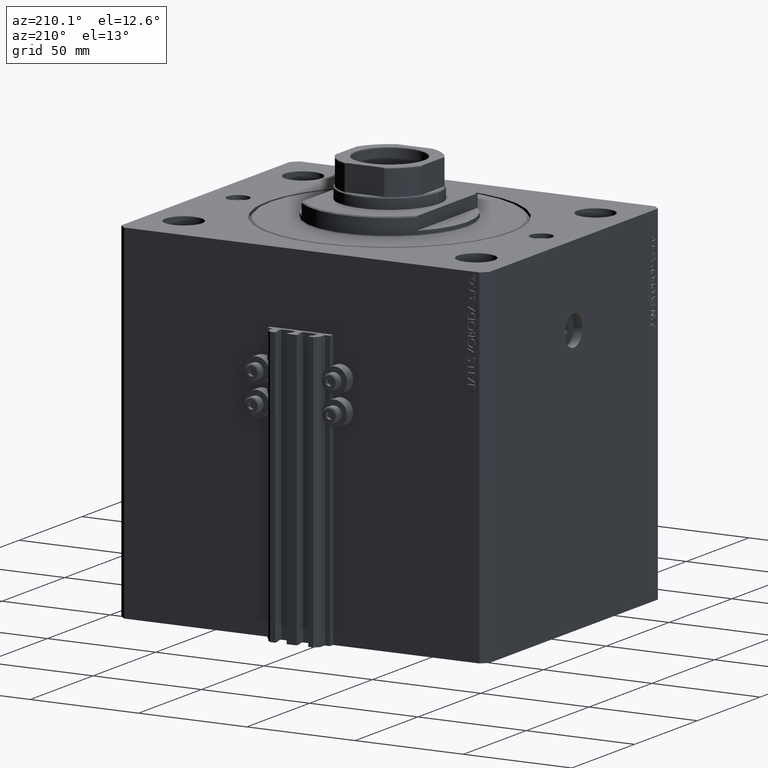
[diagram: clean part render]
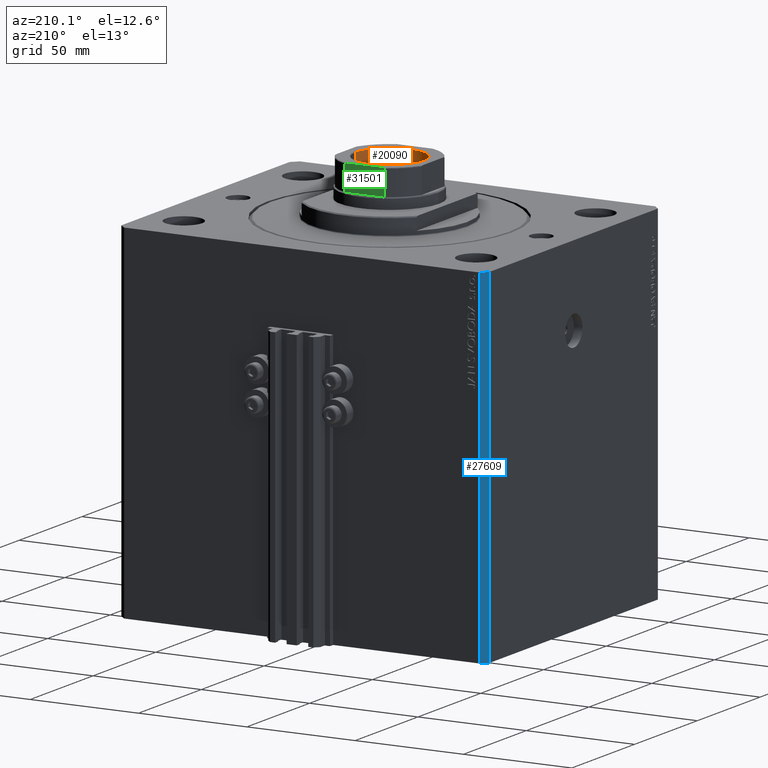
[diagram: same view with three faces highlighted in distinct colors, each labeled with its STEP entity id]
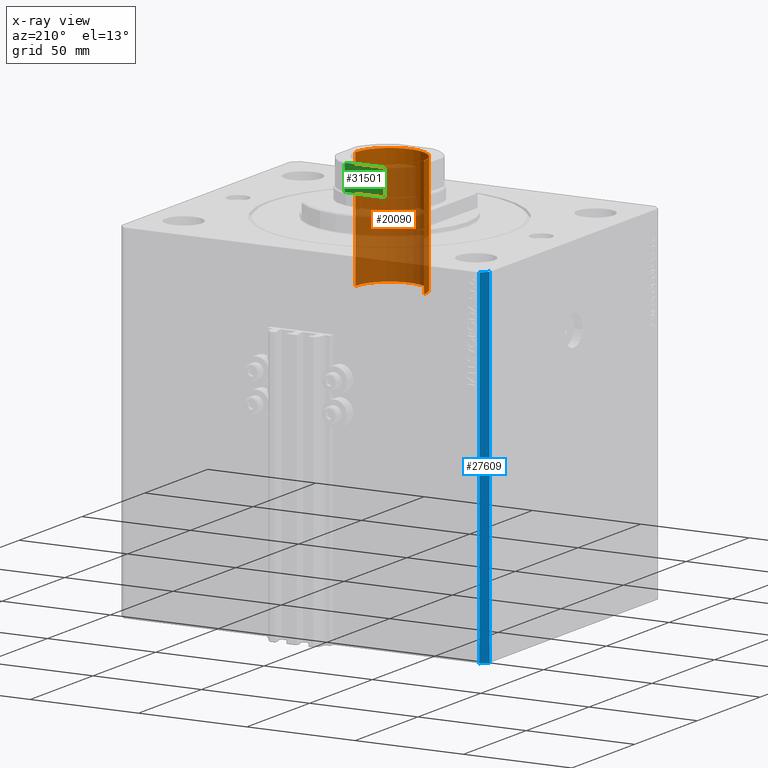
[diagram: x-ray of the same camera — body ghosted, the three highlighted faces saturated]
A machine part, auxiliary view with three faces highlighted in distinct colors.
The next image is the same camera in x-ray (body ghosted, the three faces saturated) — at least one of them is partly hidden behind the body in this view.
Their STEP definitions:

[orange] entity #20090 — the highlighted cylindrical surface (partial cylindrical patch) has radius 15.75 mm, axis along (0, 0, 1).
#5051 = CARTESIAN_POINT ( 'NONE',  ( 0.000000000000000000, 0.000000000000000000, 155.7999999999999545 ) ) ;
#5316 = DIRECTION ( 'NONE',  ( 1.000000000000000000, 0.000000000000000000, 0.000000000000000000 ) ) ;
#7582 = CIRCLE ( 'NONE', #46484, 15.74999999999999289 ) ;
#8878 = ORIENTED_EDGE ( 'NONE', *, *, #28510, .T. ) ;
#13344 = VERTEX_POINT ( 'NONE', #46841 ) ;
#13988 = CARTESIAN_POINT ( 'NONE',  ( 15.74999999999999289, 0.000000000000000000, 156.1000000000000227 ) ) ;
#14276 = DIRECTION ( 'NONE',  ( 1.000000000000000000, 0.000000000000000000, 0.000000000000000000 ) ) ;
#15334 = VERTEX_POINT ( 'NONE', #39180 ) ;
#16512 = CARTESIAN_POINT ( 'NONE',  ( 15.74999999999998934, 0.000000000000000000, 101.1000000000000227 ) ) ;
#17419 = LINE ( 'NONE', #27927, #40235 ) ;
#17881 = CARTESIAN_POINT ( 'NONE',  ( 0.000000000000000000, 0.000000000000000000, 156.1000000000000227 ) ) ;
#18334 = AXIS2_PLACEMENT_3D ( 'NONE', #17881, #46991, #14276 ) ;
#19199 = DIRECTION ( 'NONE',  ( -0.000000000000000000, -0.000000000000000000, 1.000000000000000000 ) ) ;
#20090 = ADVANCED_FACE ( 'NONE', ( #32653 ), #32425, .F. ) ;
#20961 = VERTEX_POINT ( 'NONE', #28355 ) ;
#22294 = ORIENTED_EDGE ( 'NONE', *, *, #24381, .T. ) ;
#24381 = EDGE_CURVE ( 'NONE', #20961, #15334, #17419, .T. ) ;
#25588 = ORIENTED_EDGE ( 'NONE', *, *, #32706, .F. ) ;
#25854 = LINE ( 'NONE', #13988, #38840 ) ;
#26855 = VERTEX_POINT ( 'NONE', #16512 ) ;
#27927 = CARTESIAN_POINT ( 'NONE',  ( -15.74999999999999289, 1.928818708657080556E-15, 156.1000000000000227 ) ) ;
#28355 = CARTESIAN_POINT ( 'NONE',  ( -15.74999999999998934, 1.928818708657080161E-15, 101.1000000000000227 ) ) ;
#28378 = EDGE_CURVE ( 'NONE', #26855, #13344, #25854, .T. ) ;
#28510 = EDGE_CURVE ( 'NONE', #15334, #13344, #7582, .T. ) ;
#29908 = DIRECTION ( 'NONE',  ( -0.000000000000000000, -0.000000000000000000, 1.000000000000000000 ) ) ;
#32425 = CYLINDRICAL_SURFACE ( 'NONE', #18334, 15.74999999999999289 ) ;
#32653 = FACE_OUTER_BOUND ( 'NONE', #37949, .T. ) ;
#32706 = EDGE_CURVE ( 'NONE', #20961, #26855, #47227, .T. ) ;
#35325 = DIRECTION ( 'NONE',  ( -0.000000000000000000, -0.000000000000000000, 1.000000000000000000 ) ) ;
#37536 = DIRECTION ( 'NONE',  ( 1.000000000000000000, 0.000000000000000000, 0.000000000000000000 ) ) ;
#37558 = CARTESIAN_POINT ( 'NONE',  ( 0.000000000000000000, 0.000000000000000000, 101.1000000000000227 ) ) ;
#37949 = EDGE_LOOP ( 'NONE', ( #25588, #22294, #8878, #38570 ) ) ;
#38570 = ORIENTED_EDGE ( 'NONE', *, *, #28378, .F. ) ;
#38840 = VECTOR ( 'NONE', #29908, 1000.000000000000000 ) ;
#39180 = CARTESIAN_POINT ( 'NONE',  ( -15.74999999999999289, 1.928818708657080556E-15, 155.7999999999999545 ) ) ;
#40235 = VECTOR ( 'NONE', #35325, 1000.000000000000000 ) ;
#41814 = DIRECTION ( 'NONE',  ( 0.000000000000000000, 0.000000000000000000, 1.000000000000000000 ) ) ;
#41912 = AXIS2_PLACEMENT_3D ( 'NONE', #37558, #19199, #5316 ) ;
#46484 = AXIS2_PLACEMENT_3D ( 'NONE', #5051, #41814, #37536 ) ;
#46841 = CARTESIAN_POINT ( 'NONE',  ( 15.74999999999999289, 0.000000000000000000, 155.7999999999999545 ) ) ;
#46991 = DIRECTION ( 'NONE',  ( -0.000000000000000000, -0.000000000000000000, 1.000000000000000000 ) ) ;
#47227 = CIRCLE ( 'NONE', #41912, 15.74999999999998934 ) ;

[blue] entity #27609 — the highlighted planar face has unit normal (-0.7071, 0.7071, 0).
#1629 = LINE ( 'NONE', #38154, #32535 ) ;
#2009 = CARTESIAN_POINT ( 'NONE',  ( -82.00000000000000000, 70.00000000000000000, 0.000000000000000000 ) ) ;
#2653 = CARTESIAN_POINT ( 'NONE',  ( -82.00000000000000000, 70.00000000000000000, -160.0000000000000000 ) ) ;
#3728 = VECTOR ( 'NONE', #23325, 1000.000000000000114 ) ;
#4323 = EDGE_LOOP ( 'NONE', ( #40188, #23662, #19754, #41371 ) ) ;
#6573 = VERTEX_POINT ( 'NONE', #12355 ) ;
#8339 = EDGE_CURVE ( 'NONE', #18667, #42827, #1629, .T. ) ;
#11662 = VERTEX_POINT ( 'NONE', #39511 ) ;
#12131 = DIRECTION ( 'NONE',  ( -0.7071067811865507924, -0.7071067811865441310, 0.000000000000000000 ) ) ;
#12355 = CARTESIAN_POINT ( 'NONE',  ( -85.00000000000001421, 67.00000000000001421, -160.0000000000000000 ) ) ;
#13620 = PLANE ( 'NONE',  #25134 ) ;
#14241 = CARTESIAN_POINT ( 'NONE',  ( -85.00000000000001421, 67.00000000000001421, -160.0000000000000000 ) ) ;
#17085 = EDGE_CURVE ( 'NONE', #11662, #6573, #25698, .T. ) ;
#18573 = VECTOR ( 'NONE', #28819, 1000.000000000000000 ) ;
#18667 = VERTEX_POINT ( 'NONE', #2009 ) ;
#19498 = CARTESIAN_POINT ( 'NONE',  ( -82.00000000000000000, 70.00000000000000000, -160.0000000000000000 ) ) ;
#19754 = ORIENTED_EDGE ( 'NONE', *, *, #17085, .T. ) ;
#22428 = CARTESIAN_POINT ( 'NONE',  ( -85.00000000000001421, 67.00000000000001421, 0.000000000000000000 ) ) ;
#23325 = DIRECTION ( 'NONE',  ( -0.7071067811865507924, -0.7071067811865441310, 0.000000000000000000 ) ) ;
#23662 = ORIENTED_EDGE ( 'NONE', *, *, #25846, .F. ) ;
#25134 = AXIS2_PLACEMENT_3D ( 'NONE', #2653, #39396, #32015 ) ;
#25698 = LINE ( 'NONE', #37851, #3728 ) ;
#25846 = EDGE_CURVE ( 'NONE', #11662, #18667, #45246, .T. ) ;
#27609 = ADVANCED_FACE ( 'NONE', ( #27964 ), #13620, .T. ) ;
#27964 = FACE_OUTER_BOUND ( 'NONE', #4323, .T. ) ;
#28819 = DIRECTION ( 'NONE',  ( 0.000000000000000000, 0.000000000000000000, 1.000000000000000000 ) ) ;
#32015 = DIRECTION ( 'NONE',  ( -0.7071067811865507924, -0.7071067811865441310, 0.000000000000000000 ) ) ;
#32535 = VECTOR ( 'NONE', #12131, 1000.000000000000114 ) ;
#33321 = DIRECTION ( 'NONE',  ( 0.000000000000000000, 0.000000000000000000, 1.000000000000000000 ) ) ;
#37851 = CARTESIAN_POINT ( 'NONE',  ( -82.00000000000000000, 70.00000000000000000, -160.0000000000000000 ) ) ;
#38027 = VECTOR ( 'NONE', #33321, 1000.000000000000000 ) ;
#38154 = CARTESIAN_POINT ( 'NONE',  ( -82.00000000000000000, 70.00000000000000000, 0.000000000000000000 ) ) ;
#39396 = DIRECTION ( 'NONE',  ( -0.7071067811865442421, 0.7071067811865509034, 0.000000000000000000 ) ) ;
#39511 = CARTESIAN_POINT ( 'NONE',  ( -82.00000000000000000, 70.00000000000000000, -160.0000000000000000 ) ) ;
#40188 = ORIENTED_EDGE ( 'NONE', *, *, #8339, .F. ) ;
#41371 = ORIENTED_EDGE ( 'NONE', *, *, #46548, .T. ) ;
#42827 = VERTEX_POINT ( 'NONE', #22428 ) ;
#45246 = LINE ( 'NONE', #19498, #38027 ) ;
#46548 = EDGE_CURVE ( 'NONE', #6573, #42827, #46959, .T. ) ;
#46959 = LINE ( 'NONE', #14241, #18573 ) ;

[green] entity #31501 — the highlighted planar face has unit normal (0, -1, 0).
#631 = VECTOR ( 'NONE', #43510, 1000.000000000000000 ) ;
#2252 = VERTEX_POINT ( 'NONE', #24467 ) ;
#2364 = DIRECTION ( 'NONE',  ( 0.000000000000000000, -0.000000000000000000, -1.000000000000000000 ) ) ;
#2652 = CARTESIAN_POINT ( 'NONE',  ( 7.889866919029743464, 20.00000000000000000, 156.1000000000000227 ) ) ;
#3308 = B_SPLINE_CURVE_WITH_KNOTS ( 'NONE', 3,
 ( #12333, #26895, #23818, #41449, #38348, #19990, #44777, #34520, #38113, #4695 ),
 .UNSPECIFIED., .F., .F.,
 ( 4, 2, 2, 2, 4 ),
 ( 0.000000000000000000, 0.0001842078696387801026, 0.0003684157392775602052, 0.0007368314785551675732, 0.001473662957110382201 ),
 .UNSPECIFIED. ) ;
#4195 = EDGE_LOOP ( 'NONE', ( #4244, #41701, #38725, #32563, #19123, #19916 ) ) ;
#4244 = ORIENTED_EDGE ( 'NONE', *, *, #12098, .F. ) ;
#4695 = CARTESIAN_POINT ( 'NONE',  ( -7.889866919029745240, 20.00000000000000000, 156.1000000000000227 ) ) ;
#4933 = VECTOR ( 'NONE', #36922, 1000.000000000000000 ) ;
#4973 = CARTESIAN_POINT ( 'NONE',  ( 9.165151389911681434, 20.00000000000000355, 155.6622865831653826 ) ) ;
#5931 = PLANE ( 'NONE',  #14399 ) ;
#6418 = CARTESIAN_POINT ( 'NONE',  ( -7.889866919029745240, 20.00000000000000000, 156.1000000000000227 ) ) ;
#6995 = CARTESIAN_POINT ( 'NONE',  ( -20.00000000000000355, 20.00000000000000000, 156.1000000000000227 ) ) ;
#8262 = B_SPLINE_CURVE_WITH_KNOTS ( 'NONE', 3,
 ( #15723, #15256, #12616, #30058, #29828, #34338, #11909, #34089, #4973, #45073 ),
 .UNSPECIFIED., .F., .F.,
 ( 4, 2, 2, 2, 4 ),
 ( 1.734723475976807094E-18, 0.0007281986681936841906, 0.001092298002290512408, 0.001274347669338924240, 0.001456397336387336289 ),
 .UNSPECIFIED. ) ;
#11378 = EDGE_CURVE ( 'NONE', #2252, #21220, #20572, .T. ) ;
#11909 = CARTESIAN_POINT ( 'NONE',  ( 9.056020599733276555, 20.00000000000000000, 155.8137161059354412 ) ) ;
#12098 = EDGE_CURVE ( 'NONE', #18945, #42803, #39704, .T. ) ;
#12333 = CARTESIAN_POINT ( 'NONE',  ( -9.165151389911676105, 20.00000000000000000, 155.6000000000000227 ) ) ;
#12616 = CARTESIAN_POINT ( 'NONE',  ( 8.376270842886095025, 20.00000000000000000, 156.0790317661354152 ) ) ;
#12839 = VECTOR ( 'NONE', #28110, 1000.000000000000000 ) ;
#13210 = VERTEX_POINT ( 'NONE', #14409 ) ;
#14399 = AXIS2_PLACEMENT_3D ( 'NONE', #20519, #35062, #2364 ) ;
#14409 = CARTESIAN_POINT ( 'NONE',  ( -9.165151389911676105, 20.00000000000000000, 155.6000000000000227 ) ) ;
#15256 = CARTESIAN_POINT ( 'NONE',  ( 8.134318822980979746, 20.00000000000000000, 156.1000000000000512 ) ) ;
#15723 = CARTESIAN_POINT ( 'NONE',  ( 7.889866919029743464, 20.00000000000000000, 156.1000000000000227 ) ) ;
#18945 = VERTEX_POINT ( 'NONE', #2652 ) ;
#19123 = ORIENTED_EDGE ( 'NONE', *, *, #25586, .T. ) ;
#19916 = ORIENTED_EDGE ( 'NONE', *, *, #41209, .T. ) ;
#19990 = CARTESIAN_POINT ( 'NONE',  ( -8.847700323750236961, 19.99999999999999645, 155.9454059444999530 ) ) ;
#20103 = CARTESIAN_POINT ( 'NONE',  ( -20.00000000000000355, 20.00000000000000000, 144.0999999999999943 ) ) ;
#20519 = CARTESIAN_POINT ( 'NONE',  ( -20.00000000000000355, 20.00000000000000000, 156.1000000000000227 ) ) ;
#20572 = LINE ( 'NONE', #20103, #45607 ) ;
#21220 = VERTEX_POINT ( 'NONE', #28243 ) ;
#21911 = LINE ( 'NONE', #40506, #4933 ) ;
#22065 = EDGE_CURVE ( 'NONE', #2252, #29619, #21911, .T. ) ;
#23818 = CARTESIAN_POINT ( 'NONE',  ( -9.135943898188770618, 20.00000000000000355, 155.7204496596643253 ) ) ;
#24046 = CARTESIAN_POINT ( 'NONE',  ( 9.165151389911676105, 20.00000000000000000, 155.6000000000000227 ) ) ;
#24467 = CARTESIAN_POINT ( 'NONE',  ( 9.165151389911676105, 20.00000000000000000, 144.0999999999999943 ) ) ;
#25586 = EDGE_CURVE ( 'NONE', #21220, #13210, #31221, .T. ) ;
#26895 = CARTESIAN_POINT ( 'NONE',  ( -9.165151389911676105, 19.99999999999999645, 155.6624095850606011 ) ) ;
#28110 = DIRECTION ( 'NONE',  ( -0.000000000000000000, -0.000000000000000000, 1.000000000000000000 ) ) ;
#28243 = CARTESIAN_POINT ( 'NONE',  ( -9.165151389911674329, 20.00000000000000000, 144.0999999999999943 ) ) ;
#28429 = DIRECTION ( 'NONE',  ( -1.000000000000000000, -0.000000000000000000, -0.000000000000000000 ) ) ;
#29619 = VERTEX_POINT ( 'NONE', #24046 ) ;
#29828 = CARTESIAN_POINT ( 'NONE',  ( 8.849170428565226842, 20.00000000000000355, 155.9446655850052537 ) ) ;
#30058 = CARTESIAN_POINT ( 'NONE',  ( 8.731854386667050605, 20.00000000000000711, 155.9859761974170169 ) ) ;
#31221 = LINE ( 'NONE', #41964, #12839 ) ;
#31501 = ADVANCED_FACE ( 'NONE', ( #38644 ), #5931, .F. ) ;
#32563 = ORIENTED_EDGE ( 'NONE', *, *, #11378, .T. ) ;
#34089 = CARTESIAN_POINT ( 'NONE',  ( 9.135966866521640029, 19.99999999999999645, 155.7203262903151142 ) ) ;
#34323 = EDGE_CURVE ( 'NONE', #18945, #29619, #8262, .T. ) ;
#34338 = CARTESIAN_POINT ( 'NONE',  ( 9.005944049512764948, 20.00000000000000000, 155.8509746237501190 ) ) ;
#34520 = CARTESIAN_POINT ( 'NONE',  ( -8.377106304411496396, 20.00000000000000000, 156.0787779673725311 ) ) ;
#35062 = DIRECTION ( 'NONE',  ( 0.000000000000000000, -1.000000000000000000, 0.000000000000000000 ) ) ;
#36922 = DIRECTION ( 'NONE',  ( -0.000000000000000000, -0.000000000000000000, 1.000000000000000000 ) ) ;
#38113 = CARTESIAN_POINT ( 'NONE',  ( -8.134263528852955005, 20.00000000000000000, 156.0999999999999943 ) ) ;
#38348 = CARTESIAN_POINT ( 'NONE',  ( -9.005650948982573567, 20.00000000000000000, 155.8512182151569050 ) ) ;
#38644 = FACE_OUTER_BOUND ( 'NONE', #4195, .T. ) ;
#38725 = ORIENTED_EDGE ( 'NONE', *, *, #22065, .F. ) ;
#39704 = LINE ( 'NONE', #6995, #631 ) ;
#40506 = CARTESIAN_POINT ( 'NONE',  ( 9.165151389911676105, 20.00000000000000000, -0.001000000000001000089 ) ) ;
#41209 = EDGE_CURVE ( 'NONE', #13210, #42803, #3308, .T. ) ;
#41449 = CARTESIAN_POINT ( 'NONE',  ( -9.055524318101882741, 19.99999999999999645, 155.8141986763097577 ) ) ;
#41701 = ORIENTED_EDGE ( 'NONE', *, *, #34323, .T. ) ;
#41964 = CARTESIAN_POINT ( 'NONE',  ( -9.165151389911676105, 20.00000000000000000, -0.001000000000001000089 ) ) ;
#42803 = VERTEX_POINT ( 'NONE', #6418 ) ;
#43510 = DIRECTION ( 'NONE',  ( -1.000000000000000000, -0.000000000000000000, -0.000000000000000000 ) ) ;
#44777 = CARTESIAN_POINT ( 'NONE',  ( -8.731041210088298143, 20.00000000000000000, 155.9862065548025498 ) ) ;
#45073 = CARTESIAN_POINT ( 'NONE',  ( 9.165151389911676105, 20.00000000000000000, 155.6000000000000227 ) ) ;
#45607 = VECTOR ( 'NONE', #28429, 1000.000000000000000 ) ;